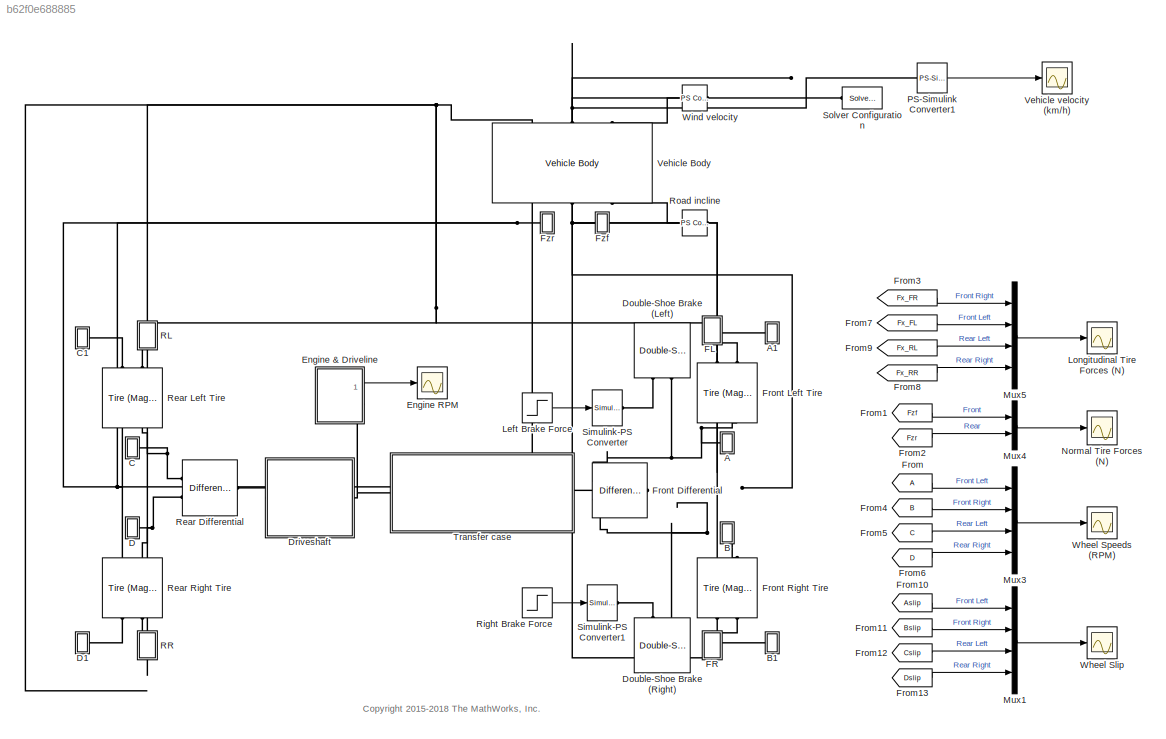
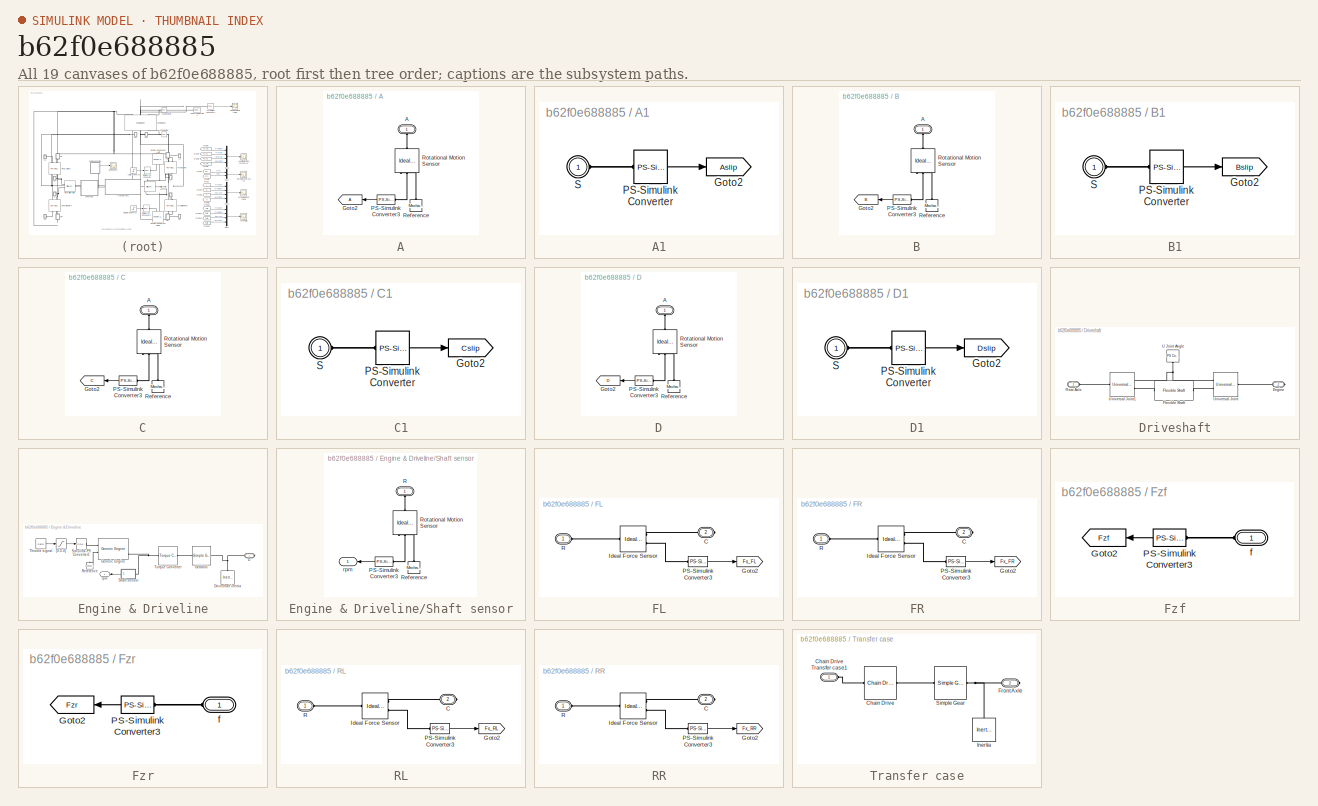
[diagram: thumbnail index - all 19 canvases of the model, root first then tree order]
MODEL slx_b62f0e688885
KIND model
CONFIG AbsTol = 1e-3
CONFIG EnableMultiTasking = on
CONFIG FixedStep = auto
CONFIG MaxStep = auto
CONFIG MinStep = auto
CONFIG RelTol = 1e-3
CONFIG SampleTimeConstraint = Unconstrained
CONFIG Solver = ode23t
CONFIG SolverName = ode23t
CONFIG StartTime = 0.0
CONFIG StopTime = 30
BLOCK [SubSystem] A
  Ports = [0, 0, 0, 0, 0, 1]
  RequestExecContextInheritance = off
BLOCK [PMIOPort] A/A
  NameLocation = right
  Side = Left
BLOCK [Goto] A/Goto2
  NameLocation = top
  TagVisibility = global
BLOCK [Reference] A/PS-Simulink Converter3  REF=nesl_utility/PS-Simulink
Converter
  NameLocation = top
  Ports = [0, 1, 0, 0, 0, 1]
  SourceBlock = nesl_utility/PS-Simulink\nConverter
  SourceProductBaseCode = SS
  SourceType = PS-Simulink\nConverter
BLOCK [Reference] A/Reference  REF=fl_lib/Mechanical/Rotational Elements/Mechanical
Rotational Reference
  NameLocation = right
  Ports = [0, 0, 0, 0, 0, 1]
  SourceBlock = fl_lib/Mechanical/Rotational Elements/Mechanical\nRotational Reference
  SourceProductBaseCode = SS
  SourceType = Mechanical\nRotational Reference
BLOCK [Reference] A/Rotational Motion Sensor  REF=fl_lib/Mechanical/Mechanical Sensors/Ideal Rotational
Motion Sensor
  NameLocation = left
  Ports = [0, 0, 0, 0, 0, 1, 3]
  SourceBlock = fl_lib/Mechanical/Mechanical Sensors/Ideal Rotational\nMotion Sensor
  SourceProductBaseCode = SS
  SourceType = Ideal Rotational\nMotion Sensor
BLOCK [SubSystem] A1
  NameLocation = top
  Ports = [0, 0, 0, 0, 0, 1]
  RequestExecContextInheritance = off
BLOCK [Goto] A1/Goto2
  GotoTag = Aslip
  NameLocation = top
  TagVisibility = global
BLOCK [Reference] A1/PS-Simulink Converter  REF=nesl_utility/PS-Simulink
Converter
  Ports = [0, 1, 0, 0, 0, 1]
  SourceBlock = nesl_utility/PS-Simulink\nConverter
  SourceProductBaseCode = SS
  SourceType = PS-Simulink\nConverter
BLOCK [PMIOPort] A1/S
  Side = Left
BLOCK [SubSystem] B
  NameLocation = top
  Ports = [0, 0, 0, 0, 0, 1]
  RequestExecContextInheritance = off
BLOCK [PMIOPort] B/A
  NameLocation = right
  Side = Left
BLOCK [Goto] B/Goto2
  GotoTag = B
  NameLocation = top
  TagVisibility = global
BLOCK [Reference] B/PS-Simulink Converter3  REF=nesl_utility/PS-Simulink
Converter
  NameLocation = top
  Ports = [0, 1, 0, 0, 0, 1]
  SourceBlock = nesl_utility/PS-Simulink\nConverter
  SourceProductBaseCode = SS
  SourceType = PS-Simulink\nConverter
BLOCK [Reference] B/Reference  REF=fl_lib/Mechanical/Rotational Elements/Mechanical
Rotational Reference
  NameLocation = right
  Ports = [0, 0, 0, 0, 0, 1]
  SourceBlock = fl_lib/Mechanical/Rotational Elements/Mechanical\nRotational Reference
  SourceProductBaseCode = SS
  SourceType = Mechanical\nRotational Reference
BLOCK [Reference] B/Rotational Motion Sensor  REF=fl_lib/Mechanical/Mechanical Sensors/Ideal Rotational
Motion Sensor
  NameLocation = left
  Ports = [0, 0, 0, 0, 0, 1, 3]
  SourceBlock = fl_lib/Mechanical/Mechanical Sensors/Ideal Rotational\nMotion Sensor
  SourceProductBaseCode = SS
  SourceType = Ideal Rotational\nMotion Sensor
BLOCK [SubSystem] B1
  NameLocation = top
  Ports = [0, 0, 0, 0, 0, 1]
  RequestExecContextInheritance = off
BLOCK [Goto] B1/Goto2
  GotoTag = Bslip
  NameLocation = top
  TagVisibility = global
BLOCK [Reference] B1/PS-Simulink Converter  REF=nesl_utility/PS-Simulink
Converter
  Ports = [0, 1, 0, 0, 0, 1]
  SourceBlock = nesl_utility/PS-Simulink\nConverter
  SourceProductBaseCode = SS
  SourceType = PS-Simulink\nConverter
BLOCK [PMIOPort] B1/S
  Side = Left
BLOCK [SubSystem] C
  Ports = [0, 0, 0, 0, 0, 1]
  RequestExecContextInheritance = off
BLOCK [PMIOPort] C/A
  NameLocation = right
  Side = Left
BLOCK [Goto] C/Goto2
  GotoTag = C
  NameLocation = top
  TagVisibility = global
BLOCK [Reference] C/PS-Simulink Converter3  REF=nesl_utility/PS-Simulink
Converter
  NameLocation = top
  Ports = [0, 1, 0, 0, 0, 1]
  SourceBlock = nesl_utility/PS-Simulink\nConverter
  SourceProductBaseCode = SS
  SourceType = PS-Simulink\nConverter
BLOCK [Reference] C/Reference  REF=fl_lib/Mechanical/Rotational Elements/Mechanical
Rotational Reference
  NameLocation = right
  Ports = [0, 0, 0, 0, 0, 1]
  SourceBlock = fl_lib/Mechanical/Rotational Elements/Mechanical\nRotational Reference
  SourceProductBaseCode = SS
  SourceType = Mechanical\nRotational Reference
BLOCK [Reference] C/Rotational Motion Sensor  REF=fl_lib/Mechanical/Mechanical Sensors/Ideal Rotational
Motion Sensor
  NameLocation = left
  Ports = [0, 0, 0, 0, 0, 1, 3]
  SourceBlock = fl_lib/Mechanical/Mechanical Sensors/Ideal Rotational\nMotion Sensor
  SourceProductBaseCode = SS
  SourceType = Ideal Rotational\nMotion Sensor
BLOCK [SubSystem] C1
  NameLocation = top
  Ports = [0, 0, 0, 0, 0, 1]
  RequestExecContextInheritance = off
BLOCK [Goto] C1/Goto2
  GotoTag = Cslip
  NameLocation = top
  TagVisibility = global
BLOCK [Reference] C1/PS-Simulink Converter  REF=nesl_utility/PS-Simulink
Converter
  Ports = [0, 1, 0, 0, 0, 1]
  SourceBlock = nesl_utility/PS-Simulink\nConverter
  SourceProductBaseCode = SS
  SourceType = PS-Simulink\nConverter
BLOCK [PMIOPort] C1/S
  Side = Left
BLOCK [SubSystem] D
  NameLocation = top
  Ports = [0, 0, 0, 0, 0, 1]
  RequestExecContextInheritance = off
BLOCK [PMIOPort] D/A
  NameLocation = right
  Side = Left
BLOCK [Goto] D/Goto2
  GotoTag = D
  NameLocation = top
  TagVisibility = global
BLOCK [Reference] D/PS-Simulink Converter3  REF=nesl_utility/PS-Simulink
Converter
  NameLocation = top
  Ports = [0, 1, 0, 0, 0, 1]
  SourceBlock = nesl_utility/PS-Simulink\nConverter
  SourceProductBaseCode = SS
  SourceType = PS-Simulink\nConverter
BLOCK [Reference] D/Reference  REF=fl_lib/Mechanical/Rotational Elements/Mechanical
Rotational Reference
  NameLocation = right
  Ports = [0, 0, 0, 0, 0, 1]
  SourceBlock = fl_lib/Mechanical/Rotational Elements/Mechanical\nRotational Reference
  SourceProductBaseCode = SS
  SourceType = Mechanical\nRotational Reference
BLOCK [Reference] D/Rotational Motion Sensor  REF=fl_lib/Mechanical/Mechanical Sensors/Ideal Rotational
Motion Sensor
  NameLocation = left
  Ports = [0, 0, 0, 0, 0, 1, 3]
  SourceBlock = fl_lib/Mechanical/Mechanical Sensors/Ideal Rotational\nMotion Sensor
  SourceProductBaseCode = SS
  SourceType = Ideal Rotational\nMotion Sensor
BLOCK [SubSystem] D1
  NameLocation = top
  Ports = [0, 0, 0, 0, 0, 1]
  RequestExecContextInheritance = off
BLOCK [Goto] D1/Goto2
  GotoTag = Dslip
  NameLocation = top
  TagVisibility = global
BLOCK [Reference] D1/PS-Simulink Converter  REF=nesl_utility/PS-Simulink
Converter
  Ports = [0, 1, 0, 0, 0, 1]
  SourceBlock = nesl_utility/PS-Simulink\nConverter
  SourceProductBaseCode = SS
  SourceType = PS-Simulink\nConverter
BLOCK [PMIOPort] D1/S
  Side = Left
BLOCK [Reference] Double-Shoe Brake (Left)  REF=sdl_lib/Brakes & Detents/Rotational/Double-Shoe Brake
  NameLocation = left
  Ports = [0, 0, 0, 0, 0, 2]
  SourceBlock = sdl_lib/Brakes & Detents/Rotational/Double-Shoe Brake
  SourceProductBaseCode = LD
  SourceType = Double-Shoe Brake
BLOCK [Reference] Double-Shoe Brake (Right)  REF=sdl_lib/Brakes & Detents/Rotational/Double-Shoe Brake
  NameLocation = left
  Ports = [0, 0, 0, 0, 0, 2]
  SourceBlock = sdl_lib/Brakes & Detents/Rotational/Double-Shoe Brake
  SourceProductBaseCode = LD
  SourceType = Double-Shoe Brake
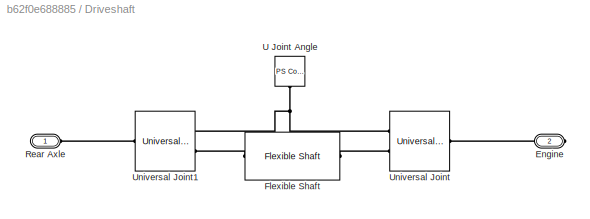
BLOCK [SubSystem] Driveshaft
  Ports = [0, 0, 0, 0, 0, 1, 1]
  RequestExecContextInheritance = off
BLOCK [PMIOPort] Driveshaft/Engine
  Port = 2
  Side = Right
BLOCK [Reference] Driveshaft/Flexible Shaft  REF=sdl_lib/Couplings & Drives/Flexible Shaft
  Ports = [0, 0, 0, 0, 0, 1, 1]
  SourceBlock = sdl_lib/Couplings & Drives/Flexible Shaft
  SourceProductBaseCode = LD
  SourceType = Flexible Shaft
BLOCK [PMIOPort] Driveshaft/Rear Axle
  Side = Left
BLOCK [Reference] Driveshaft/U Joint Angle  REF=fl_lib/Physical Signals/Sources/PS Constant
  NameLocation = left
  Ports = [0, 0, 0, 0, 0, 0, 1]
  SourceBlock = fl_lib/Physical Signals/Sources/PS Constant
  SourceProductBaseCode = SS
  SourceType = PS Constant
BLOCK [Reference] Driveshaft/Universal Joint  REF=sdl_lib/Couplings & Drives/Universal Joint
  Ports = [0, 0, 0, 0, 0, 2, 1]
  SourceBlock = sdl_lib/Couplings & Drives/Universal Joint
  SourceProductBaseCode = LD
  SourceType = Universal Joint
BLOCK [Reference] Driveshaft/Universal Joint1  REF=sdl_lib/Couplings & Drives/Universal Joint
  Ports = [0, 0, 0, 0, 0, 2, 1]
  SourceBlock = sdl_lib/Couplings & Drives/Universal Joint
  SourceProductBaseCode = LD
  SourceType = Universal Joint
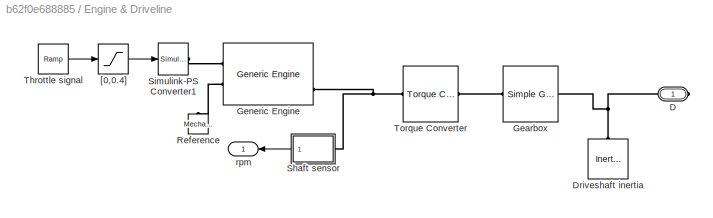
BLOCK [SubSystem] Engine & Driveline
  Ports = [0, 1, 0, 0, 0, 0, 1]
  RequestExecContextInheritance = off
BLOCK [PMIOPort] Engine & Driveline/D
  Side = Right
BLOCK [Reference] Engine & Driveline/Driveshaft inertia  REF=fl_lib/Mechanical/Rotational Elements/Inertia
  NameLocation = right
  Ports = [0, 0, 0, 0, 0, 1]
  SourceBlock = fl_lib/Mechanical/Rotational Elements/Inertia
  SourceProductBaseCode = SS
  SourceType = Inertia
BLOCK [Reference] Engine & Driveline/Gearbox  REF=sdl_lib/Gears/Simple Gear
  Ports = [0, 0, 0, 0, 0, 1, 1]
  SourceBlock = sdl_lib/Gears/Simple Gear
  SourceProductBaseCode = LD
  SourceType = Simple Gear
BLOCK [Reference] Engine & Driveline/Generic Engine  REF=sdl_lib/Engines/Generic Engine
  Ports = [0, 0, 0, 0, 0, 2, 3]
  SourceBlock = sdl_lib/Engines/Generic Engine
  SourceProductBaseCode = LD
  SourceType = Generic Engine
BLOCK [Reference] Engine & Driveline/Reference  REF=fl_lib/Mechanical/Rotational Elements/Mechanical
Rotational Reference
  NameLocation = right
  Ports = [0, 0, 0, 0, 0, 1]
  SourceBlock = fl_lib/Mechanical/Rotational Elements/Mechanical\nRotational Reference
  SourceProductBaseCode = SS
  SourceType = Mechanical\nRotational Reference
BLOCK [SubSystem] Engine & Driveline/Shaft sensor
  Ports = [0, 1, 0, 0, 0, 1]
  RequestExecContextInheritance = off
BLOCK [Reference] Engine & Driveline/Shaft sensor/PS-Simulink Converter3  REF=nesl_utility/PS-Simulink
Converter
  NameLocation = top
  Ports = [0, 1, 0, 0, 0, 1]
  SourceBlock = nesl_utility/PS-Simulink\nConverter
  SourceProductBaseCode = SS
  SourceType = PS-Simulink\nConverter
BLOCK [PMIOPort] Engine & Driveline/Shaft sensor/R
  NameLocation = right
  Side = Left
BLOCK [Reference] Engine & Driveline/Shaft sensor/Reference  REF=fl_lib/Mechanical/Rotational Elements/Mechanical
Rotational Reference
  NameLocation = right
  Ports = [0, 0, 0, 0, 0, 1]
  SourceBlock = fl_lib/Mechanical/Rotational Elements/Mechanical\nRotational Reference
  SourceProductBaseCode = SS
  SourceType = Mechanical\nRotational Reference
BLOCK [Reference] Engine & Driveline/Shaft sensor/Rotational Motion Sensor  REF=fl_lib/Mechanical/Mechanical Sensors/Ideal Rotational
Motion Sensor
  NameLocation = left
  Ports = [0, 0, 0, 0, 0, 1, 3]
  SourceBlock = fl_lib/Mechanical/Mechanical Sensors/Ideal Rotational\nMotion Sensor
  SourceProductBaseCode = SS
  SourceType = Ideal Rotational\nMotion Sensor
BLOCK [Outport] Engine & Driveline/Shaft sensor/rpm
  VectorParamsAs1DForOutWhenUnconnected = off
BLOCK [Reference] Engine & Driveline/Simulink-PS Converter1  REF=nesl_utility/Simulink-PS
Converter
  Ports = [1, 0, 0, 0, 0, 0, 1]
  SourceBlock = nesl_utility/Simulink-PS\nConverter
  SourceProductBaseCode = SS
  SourceType = Simulink-PS\nConverter
BLOCK [Reference] Engine & Driveline/Throttle signal  REF=simulink/Sources/Ramp
  Ports = [0, 1]
  SourceBlock = simulink/Sources/Ramp
  SourceProductBaseCode = SL
  SourceType = Ramp
BLOCK [Reference] Engine & Driveline/Torque Converter  REF=sdl_lib/Couplings & Drives/Torque Converter
  Ports = [0, 0, 0, 0, 0, 1, 1]
  SourceBlock = sdl_lib/Couplings & Drives/Torque Converter
  SourceProductBaseCode = LD
  SourceType = Torque Converter
BLOCK [Saturate] Engine & Driveline/[0,0.4]
  LowerLimit = 0
  UpperLimit = 0.4
BLOCK [Outport] Engine & Driveline/rpm
  VectorParamsAs1DForOutWhenUnconnected = off
BLOCK [Scope] Engine RPM
  Floating = off
  NameLocation = top
  NumInputPorts = 1
  Ports = [1]
  ScopeSpecificationString = Simulink.scopes.TimeScopeBlockCfg('CurrentConfiguration', extmgr.ConfigurationSet(extmgr.Configuration('Core','General UI',true),extmgr.Configuration('Core','Source UI',true),extmgr.Configuration('Sources','WiredSimulink',true,'DataLoggingVariableName','ScopeData3','DataLoggingSaveFormat','StructureWithTime','DataLoggingDecimation','1','DataLoggingDecimateData',true),extmgr.Configuration('Visuals'...<+1649ch>
BLOCK [SubSystem] FL
  NameLocation = right
  Ports = [0, 0, 0, 0, 0, 1, 1]
  RequestExecContextInheritance = off
BLOCK [PMIOPort] FL/C
  Port = 2
  Side = Right
BLOCK [Goto] FL/Goto2
  GotoTag = Fx_FL
  TagVisibility = global
BLOCK [Reference] FL/Ideal Force Sensor  REF=fl_lib/Mechanical/Mechanical Sensors/Ideal Force Sensor
  Ports = [0, 0, 0, 0, 0, 1, 2]
  SourceBlock = fl_lib/Mechanical/Mechanical Sensors/Ideal Force Sensor
  SourceProductBaseCode = SS
  SourceType = Ideal Force Sensor
BLOCK [Reference] FL/PS-Simulink Converter3  REF=nesl_utility/PS-Simulink
Converter
  Ports = [0, 1, 0, 0, 0, 1]
  SourceBlock = nesl_utility/PS-Simulink\nConverter
  SourceProductBaseCode = SS
  SourceType = PS-Simulink\nConverter
BLOCK [PMIOPort] FL/R
  Side = Left
BLOCK [SubSystem] FR
  NameLocation = right
  Ports = [0, 0, 0, 0, 0, 1, 1]
  RequestExecContextInheritance = off
BLOCK [PMIOPort] FR/C
  Port = 2
  Side = Right
BLOCK [Goto] FR/Goto2
  GotoTag = Fx_FR
  TagVisibility = global
BLOCK [Reference] FR/Ideal Force Sensor  REF=fl_lib/Mechanical/Mechanical Sensors/Ideal Force Sensor
  Ports = [0, 0, 0, 0, 0, 1, 2]
  SourceBlock = fl_lib/Mechanical/Mechanical Sensors/Ideal Force Sensor
  SourceProductBaseCode = SS
  SourceType = Ideal Force Sensor
BLOCK [Reference] FR/PS-Simulink Converter3  REF=nesl_utility/PS-Simulink
Converter
  Ports = [0, 1, 0, 0, 0, 1]
  SourceBlock = nesl_utility/PS-Simulink\nConverter
  SourceProductBaseCode = SS
  SourceType = PS-Simulink\nConverter
BLOCK [PMIOPort] FR/R
  Side = Left
BLOCK [From] From
  CloseFcn = tagdialog Close
  TagVisibility = global
BLOCK [From] From1
  CloseFcn = tagdialog Close
  GotoTag = Fzf
  TagVisibility = global
BLOCK [From] From10
  CloseFcn = tagdialog Close
  GotoTag = Aslip
  TagVisibility = global
BLOCK [From] From11
  CloseFcn = tagdialog Close
  GotoTag = Bslip
  TagVisibility = global
BLOCK [From] From12
  CloseFcn = tagdialog Close
  GotoTag = Cslip
  TagVisibility = global
BLOCK [From] From13
  CloseFcn = tagdialog Close
  GotoTag = Dslip
  TagVisibility = global
BLOCK [From] From2
  CloseFcn = tagdialog Close
  GotoTag = Fzr
  TagVisibility = global
BLOCK [From] From3
  CloseFcn = tagdialog Close
  GotoTag = Fx_FR
  TagVisibility = global
BLOCK [From] From4
  CloseFcn = tagdialog Close
  GotoTag = B
  TagVisibility = global
BLOCK [From] From5
  CloseFcn = tagdialog Close
  GotoTag = C
  TagVisibility = global
BLOCK [From] From6
  CloseFcn = tagdialog Close
  GotoTag = D
  TagVisibility = global
BLOCK [From] From7
  CloseFcn = tagdialog Close
  GotoTag = Fx_FL
  TagVisibility = global
BLOCK [From] From8
  CloseFcn = tagdialog Close
  GotoTag = Fx_RR
  TagVisibility = global
BLOCK [From] From9
  CloseFcn = tagdialog Close
  GotoTag = Fx_RL
  TagVisibility = global
BLOCK [Reference] Front Differential  REF=sdl_lib/Gears/Differential
  NameLocation = top
  Ports = [0, 0, 0, 0, 0, 1, 2]
  SourceBlock = sdl_lib/Gears/Differential
  SourceProductBaseCode = LD
  SourceType = Differential
BLOCK [Reference] Front Left Tire  REF=sdl_lib/Tires & Vehicles/Tire (Magic Formula)
  NameLocation = right
  Ports = [0, 0, 0, 0, 0, 2, 2]
  SourceBlock = sdl_lib/Tires & Vehicles/Tire (Magic Formula)
  SourceProductBaseCode = LD
  SourceType = Tire (Magic Formula)
BLOCK [Reference] Front Right Tire  REF=sdl_lib/Tires & Vehicles/Tire (Magic Formula)
  NameLocation = right
  Ports = [0, 0, 0, 0, 0, 2, 2]
  SourceBlock = sdl_lib/Tires & Vehicles/Tire (Magic Formula)
  SourceProductBaseCode = LD
  SourceType = Tire (Magic Formula)
BLOCK [SubSystem] Fzf
  Ports = [0, 0, 0, 0, 0, 1]
  RequestExecContextInheritance = off
BLOCK [Goto] Fzf/Goto2
  GotoTag = Fzf
  NameLocation = top
  TagVisibility = global
BLOCK [Reference] Fzf/PS-Simulink Converter3  REF=nesl_utility/PS-Simulink
Converter
  NameLocation = top
  Ports = [0, 1, 0, 0, 0, 1]
  SourceBlock = nesl_utility/PS-Simulink\nConverter
  SourceProductBaseCode = SS
  SourceType = PS-Simulink\nConverter
BLOCK [PMIOPort] Fzf/f
  Side = Left
BLOCK [SubSystem] Fzr
  Ports = [0, 0, 0, 0, 0, 1]
  RequestExecContextInheritance = off
BLOCK [Goto] Fzr/Goto2
  GotoTag = Fzr
  NameLocation = top
  TagVisibility = global
BLOCK [Reference] Fzr/PS-Simulink Converter3  REF=nesl_utility/PS-Simulink
Converter
  NameLocation = top
  Ports = [0, 1, 0, 0, 0, 1]
  SourceBlock = nesl_utility/PS-Simulink\nConverter
  SourceProductBaseCode = SS
  SourceType = PS-Simulink\nConverter
BLOCK [PMIOPort] Fzr/f
  Side = Left
BLOCK [Step] Left Brake Force
  After = 1000
  AttributesFormatString = Brake on @ %<Time> s
  NameLocation = top
  SampleTime = 0
  Time = 10
BLOCK [Scope] Longitudinal Tire Forces (N)
  Floating = off
  NumInputPorts = 1
  Ports = [1]
  ScopeSpecificationString = Simulink.scopes.TimeScopeBlockCfg('CurrentConfiguration', extmgr.ConfigurationSet(extmgr.Configuration('Core','General UI',true),extmgr.Configuration('Core','Source UI',true),extmgr.Configuration('Sources','WiredSimulink',true,'DataLoggingVariableName','ScopeData4','DataLoggingSaveFormat','StructureWithTime','DataLoggingDecimation','1','DataLoggingDecimateData',true),extmgr.Configuration('Visuals'...<+1849ch>
BLOCK [Mux] Mux1
  DisplayOption = bar
  Ports = [4, 1]
BLOCK [Mux] Mux3
  DisplayOption = bar
  Ports = [4, 1]
BLOCK [Mux] Mux4
  DisplayOption = bar
  Inputs = 2
  Ports = [2, 1]
BLOCK [Mux] Mux5
  DisplayOption = bar
  Ports = [4, 1]
BLOCK [Scope] Normal Tire Forces (N)
  Floating = off
  NumInputPorts = 1
  Ports = [1]
  ScopeSpecificationString = C++SS(StrPVP('Location','[719, 77, 1274, 604]'),StrPVP('Open','off'),MxPVP('AxesTitles',54,'struct(''axes1'',''%<SignalLabel>'')'),MxPVP('ScopeGraphics',57,'struct(''FigureColor'',''[0.501960784313725 0.501960784313725 0.501960784313725]'',''AxesColor'',''[0 0 0]'',''AxesTickColor'',''[1 1 1]'',''LineColors'',''[1 1 0;1 0 1;0 1 1;1 0 0;0 1 0;0 0 1]'',''LineStyles'',''-|-|-|-|-|-'',''LineWidths'','...<+382ch>
BLOCK [Reference] PS-Simulink Converter1  REF=nesl_utility/PS-Simulink
Converter
  Ports = [0, 1, 0, 0, 0, 1]
  SourceBlock = nesl_utility/PS-Simulink\nConverter
  SourceProductBaseCode = SS
  SourceType = PS-Simulink\nConverter
BLOCK [SubSystem] RL
  NameLocation = left
  Ports = [0, 0, 0, 0, 0, 1, 1]
  RequestExecContextInheritance = off
BLOCK [PMIOPort] RL/C
  Port = 2
  Side = Right
BLOCK [Goto] RL/Goto2
  GotoTag = Fx_RL
  TagVisibility = global
BLOCK [Reference] RL/Ideal Force Sensor  REF=fl_lib/Mechanical/Mechanical Sensors/Ideal Force Sensor
  Ports = [0, 0, 0, 0, 0, 1, 2]
  SourceBlock = fl_lib/Mechanical/Mechanical Sensors/Ideal Force Sensor
  SourceProductBaseCode = SS
  SourceType = Ideal Force Sensor
BLOCK [Reference] RL/PS-Simulink Converter3  REF=nesl_utility/PS-Simulink
Converter
  Ports = [0, 1, 0, 0, 0, 1]
  SourceBlock = nesl_utility/PS-Simulink\nConverter
  SourceProductBaseCode = SS
  SourceType = PS-Simulink\nConverter
BLOCK [PMIOPort] RL/R
  Side = Left
BLOCK [SubSystem] RR
  NameLocation = right
  Ports = [0, 0, 0, 0, 0, 1, 1]
  RequestExecContextInheritance = off
BLOCK [PMIOPort] RR/C
  Port = 2
  Side = Right
BLOCK [Goto] RR/Goto2
  GotoTag = Fx_RR
  TagVisibility = global
BLOCK [Reference] RR/Ideal Force Sensor  REF=fl_lib/Mechanical/Mechanical Sensors/Ideal Force Sensor
  Ports = [0, 0, 0, 0, 0, 1, 2]
  SourceBlock = fl_lib/Mechanical/Mechanical Sensors/Ideal Force Sensor
  SourceProductBaseCode = SS
  SourceType = Ideal Force Sensor
BLOCK [Reference] RR/PS-Simulink Converter3  REF=nesl_utility/PS-Simulink
Converter
  Ports = [0, 1, 0, 0, 0, 1]
  SourceBlock = nesl_utility/PS-Simulink\nConverter
  SourceProductBaseCode = SS
  SourceType = PS-Simulink\nConverter
BLOCK [PMIOPort] RR/R
  Side = Left
BLOCK [Reference] Rear Differential  REF=sdl_lib/Gears/Differential
  Ports = [0, 0, 0, 0, 0, 1, 2]
  SourceBlock = sdl_lib/Gears/Differential
  SourceProductBaseCode = LD
  SourceType = Differential
BLOCK [Reference] Rear Left Tire  REF=sdl_lib/Tires & Vehicles/Tire (Magic Formula)
  NameLocation = left
  Ports = [0, 0, 0, 0, 0, 2, 2]
  SourceBlock = sdl_lib/Tires & Vehicles/Tire (Magic Formula)
  SourceProductBaseCode = LD
  SourceType = Tire (Magic Formula)
BLOCK [Reference] Rear Right Tire  REF=sdl_lib/Tires & Vehicles/Tire (Magic Formula)
  NameLocation = left
  Ports = [0, 0, 0, 0, 0, 2, 2]
  SourceBlock = sdl_lib/Tires & Vehicles/Tire (Magic Formula)
  SourceProductBaseCode = LD
  SourceType = Tire (Magic Formula)
BLOCK [Step] Right Brake Force
  After = 1000
  AttributesFormatString = Brake on @ %<Time> s
  NameLocation = top
  SampleTime = 0
  Time = 15
BLOCK [Reference] Road incline  REF=fl_lib/Physical Signals/Sources/PS Constant
  Ports = [0, 0, 0, 0, 0, 0, 1]
  SourceBlock = fl_lib/Physical Signals/Sources/PS Constant
  SourceProductBaseCode = SS
  SourceType = PS Constant
BLOCK [Reference] Simulink-PS Converter  REF=nesl_utility/Simulink-PS
Converter
  Ports = [1, 0, 0, 0, 0, 0, 1]
  SourceBlock = nesl_utility/Simulink-PS\nConverter
  SourceProductBaseCode = SS
  SourceType = Simulink-PS\nConverter
BLOCK [Reference] Simulink-PS Converter1  REF=nesl_utility/Simulink-PS
Converter
  Ports = [1, 0, 0, 0, 0, 0, 1]
  SourceBlock = nesl_utility/Simulink-PS\nConverter
  SourceProductBaseCode = SS
  SourceType = Simulink-PS\nConverter
BLOCK [Reference] Solver Configuration  REF=nesl_utility/Solver
Configuration
  Ports = [0, 0, 0, 0, 0, 0, 1]
  SourceBlock = nesl_utility/Solver\nConfiguration
  SourceProductBaseCode = SS
  SourceType = Solver\nConfiguration
BLOCK [SubSystem] Transfer case
  Ports = [0, 0, 0, 0, 0, 1, 1]
  RequestExecContextInheritance = off
BLOCK [Reference] Transfer case/Chain Drive   REF=sdl_lib/Couplings & Drives/Chain Drive
  Ports = [0, 0, 0, 0, 0, 1, 1]
  SourceBlock = sdl_lib/Couplings & Drives/Chain Drive
  SourceProductBaseCode = LD
  SourceType = Chain Drive
BLOCK [PMIOPort] Transfer case/Chain Drive Transfer case1
  Side = Left
BLOCK [PMIOPort] Transfer case/Front Axle
  Port = 2
  Side = Right
BLOCK [Reference] Transfer case/Inertia  REF=fl_lib/Mechanical/Rotational Elements/Inertia
  NameLocation = right
  Ports = [0, 0, 0, 0, 0, 1]
  SourceBlock = fl_lib/Mechanical/Rotational Elements/Inertia
  SourceProductBaseCode = SS
  SourceType = Inertia
BLOCK [Reference] Transfer case/Simple Gear  REF=sdl_lib/Gears/Simple Gear
  Ports = [0, 0, 0, 0, 0, 1, 1]
  SourceBlock = sdl_lib/Gears/Simple Gear
  SourceProductBaseCode = LD
  SourceType = Simple Gear
BLOCK [Reference] Vehicle Body  REF=sdl_lib/Tires & Vehicles/Vehicle Body
  NameLocation = left
  Ports = [0, 0, 0, 0, 0, 3, 3]
  SourceBlock = sdl_lib/Tires & Vehicles/Vehicle Body
  SourceProductBaseCode = LD
  SourceType = Vehicle Body
BLOCK [Scope] Vehicle velocity (km//h)
  Floating = off
  NumInputPorts = 1
  Ports = [1]
  ScopeSpecificationString = C++SS(StrPVP('Location','[785, 69, 1273, 519]'),StrPVP('Open','off'),MxPVP('AxesTitles',54,'struct(''axes1'',''%<SignalLabel>'')'),MxPVP('ScopeGraphics',57,'struct(''FigureColor'',''[0.501960784313725 0.501960784313725 0.501960784313725]'',''AxesColor'',''[0 0 0]'',''AxesTickColor'',''[1 1 1]'',''LineColors'',''[1 1 0;1 0 1;0 1 1;1 0 0;0 1 0;0 0 1]'',''LineStyles'',''-|-|-|-|-|-'',''LineWidths'','...<+351ch>
BLOCK [Scope] Wheel Slip
  Floating = off
  NumInputPorts = 1
  Ports = [1]
  ScopeSpecificationString = Simulink.scopes.TimeScopeBlockCfg('CurrentConfiguration', extmgr.ConfigurationSet(extmgr.Configuration('Core','General UI',true),extmgr.Configuration('Core','Source UI',true),extmgr.Configuration('Sources','WiredSimulink',true,'DataLoggingSaveFormat','StructureWithTime','DataLoggingDecimation','1','DataLoggingDecimateData',true),extmgr.Configuration('Visuals','Time Domain',true,'SerializedDisplays...<+1812ch>
BLOCK [Scope] Wheel Speeds (RPM)
  Floating = off
  NumInputPorts = 1
  Ports = [1]
  ScopeSpecificationString = Simulink.scopes.TimeScopeBlockCfg('CurrentConfiguration', extmgr.ConfigurationSet(extmgr.Configuration('Core','General UI',true),extmgr.Configuration('Core','Source UI',true),extmgr.Configuration('Sources','WiredSimulink',true,'DataLoggingVariableName','ScopeData1','DataLoggingSaveFormat','StructureWithTime','DataLoggingDecimation','1','DataLoggingDecimateData',true),extmgr.Configuration('Visuals'...<+1838ch>
BLOCK [Reference] Wind velocity  REF=fl_lib/Physical Signals/Sources/PS Constant
  Ports = [0, 0, 0, 0, 0, 0, 1]
  SourceBlock = fl_lib/Physical Signals/Sources/PS Constant
  SourceProductBaseCode = SS
  SourceType = PS Constant
ANNOTATION (root): <copyright redacted>
LINE A/PS-Simulink Converter3:1 -> A/Goto2:1
LINE A1/PS-Simulink Converter:1 -> A1/Goto2:1
LINE B/PS-Simulink Converter3:1 -> B/Goto2:1
LINE B1/PS-Simulink Converter:1 -> B1/Goto2:1
LINE C/PS-Simulink Converter3:1 -> C/Goto2:1
LINE C1/PS-Simulink Converter:1 -> C1/Goto2:1
LINE D/PS-Simulink Converter3:1 -> D/Goto2:1
LINE D1/PS-Simulink Converter:1 -> D1/Goto2:1
LINE Engine & Driveline/Shaft sensor/PS-Simulink Converter3:1 -> Engine & Driveline/Shaft sensor/rpm:1
LINE Engine & Driveline/Shaft sensor:1 -> Engine & Driveline/rpm:1
LINE Engine & Driveline/Throttle signal:1 -> Engine & Driveline/[0,0.4]:1
LINE Engine & Driveline/[0,0.4]:1 -> Engine & Driveline/Simulink-PS Converter1:1
LINE Engine & Driveline:1 -> Engine RPM:1
LINE FL/PS-Simulink Converter3:1 -> FL/Goto2:1
LINE FR/PS-Simulink Converter3:1 -> FR/Goto2:1
LINE From10:1 -> Mux1:1
LINE From11:1 -> Mux1:2
LINE From12:1 -> Mux1:3
LINE From13:1 -> Mux1:4
LINE From1:1 -> Mux4:1
LINE From2:1 -> Mux4:2
LINE From3:1 -> Mux5:1
LINE From4:1 -> Mux3:2
LINE From5:1 -> Mux3:3
LINE From6:1 -> Mux3:4
LINE From7:1 -> Mux5:2
LINE From8:1 -> Mux5:4
LINE From9:1 -> Mux5:3
LINE From:1 -> Mux3:1
LINE Fzf/PS-Simulink Converter3:1 -> Fzf/Goto2:1
LINE Fzr/PS-Simulink Converter3:1 -> Fzr/Goto2:1
LINE Left Brake Force:1 -> Simulink-PS Converter:1
LINE Mux1:1 -> Wheel Slip:1
LINE Mux3:1 -> Wheel Speeds (RPM):1
LINE Mux4:1 -> Normal Tire Forces (N):1
LINE Mux5:1 -> Longitudinal Tire Forces (N):1
LINE PS-Simulink Converter1:1 -> Vehicle velocity (km//h):1
LINE RL/PS-Simulink Converter3:1 -> RL/Goto2:1
LINE RR/PS-Simulink Converter3:1 -> RR/Goto2:1
LINE Right Brake Force:1 -> Simulink-PS Converter1:1
PLINE A/A:RConn1 -- A/Rotational Motion Sensor:LConn1
PLINE A/PS-Simulink Converter3:LConn1 -- A/Rotational Motion Sensor:RConn2
PLINE A/Reference:LConn1 -- A/Rotational Motion Sensor:RConn1
PLINE A1/PS-Simulink Converter:LConn1 -- A1/S:RConn1
PLINE A1:LConn1 -- Front Left Tire:RConn1
PNET net1: A:LConn1 -- Double-Shoe Brake (Left):LConn2 -- Front Differential:RConn1 -- Front Left Tire:LConn2
PLINE B/A:RConn1 -- B/Rotational Motion Sensor:LConn1
PLINE B/PS-Simulink Converter3:LConn1 -- B/Rotational Motion Sensor:RConn2
PLINE B/Reference:LConn1 -- B/Rotational Motion Sensor:RConn1
PLINE B1/PS-Simulink Converter:LConn1 -- B1/S:RConn1
PLINE B1:LConn1 -- Front Right Tire:RConn1
PNET net2: B:LConn1 -- Double-Shoe Brake (Right):LConn2 -- Front Differential:RConn2 -- Front Right Tire:LConn2
PLINE C/A:RConn1 -- C/Rotational Motion Sensor:LConn1
PLINE C/PS-Simulink Converter3:LConn1 -- C/Rotational Motion Sensor:RConn2
PLINE C/Reference:LConn1 -- C/Rotational Motion Sensor:RConn1
PLINE C1/PS-Simulink Converter:LConn1 -- C1/S:RConn1
PLINE C1:LConn1 -- Rear Left Tire:RConn1
PNET net3: C:LConn1 -- Rear Differential:RConn1 -- Rear Left Tire:LConn2
PLINE D/A:RConn1 -- D/Rotational Motion Sensor:LConn1
PLINE D/PS-Simulink Converter3:LConn1 -- D/Rotational Motion Sensor:RConn2
PLINE D/Reference:LConn1 -- D/Rotational Motion Sensor:RConn1
PLINE D1/PS-Simulink Converter:LConn1 -- D1/S:RConn1
PLINE D1:LConn1 -- Rear Right Tire:RConn1
PNET net4: D:LConn1 -- Rear Differential:RConn2 -- Rear Right Tire:LConn2
PLINE Double-Shoe Brake (Left):LConn1 -- Simulink-PS Converter:RConn1
PLINE Double-Shoe Brake (Right):LConn1 -- Simulink-PS Converter1:RConn1
PLINE Driveshaft/Engine:RConn1 -- Driveshaft/Universal Joint:RConn1
PLINE Driveshaft/Flexible Shaft:LConn1 -- Driveshaft/Universal Joint1:LConn2
PLINE Driveshaft/Flexible Shaft:RConn1 -- Driveshaft/Universal Joint:LConn2
PLINE Driveshaft/Rear Axle:RConn1 -- Driveshaft/Universal Joint1:RConn1
PNET net5: Driveshaft/U Joint Angle:RConn1 -- Driveshaft/Universal Joint1:LConn1 -- Driveshaft/Universal Joint:LConn1
PLINE Driveshaft:LConn1 -- Rear Differential:LConn1
PNET net6: Driveshaft:RConn1 -- Engine & Driveline:RConn1 -- Transfer case:LConn1
PNET net7: Engine & Driveline/D:RConn1 -- Engine & Driveline/Driveshaft inertia:LConn1 -- Engine & Driveline/Gearbox:RConn1
PLINE Engine & Driveline/Gearbox:LConn1 -- Engine & Driveline/Torque Converter:RConn1
PLINE Engine & Driveline/Generic Engine:LConn1 -- Engine & Driveline/Simulink-PS Converter1:RConn1
PLINE Engine & Driveline/Generic Engine:LConn2 -- Engine & Driveline/Reference:LConn1
PNET net8: Engine & Driveline/Generic Engine:RConn3 -- Engine & Driveline/Shaft sensor:LConn1 -- Engine & Driveline/Torque Converter:LConn1
PLINE Engine & Driveline/Shaft sensor/PS-Simulink Converter3:LConn1 -- Engine & Driveline/Shaft sensor/Rotational Motion Sensor:RConn2
PLINE Engine & Driveline/Shaft sensor/R:RConn1 -- Engine & Driveline/Shaft sensor/Rotational Motion Sensor:LConn1
PLINE Engine & Driveline/Shaft sensor/Reference:LConn1 -- Engine & Driveline/Shaft sensor/Rotational Motion Sensor:RConn1
PLINE FL/C:RConn1 -- FL/Ideal Force Sensor:RConn1
PLINE FL/Ideal Force Sensor:LConn1 -- FL/R:RConn1
PLINE FL/Ideal Force Sensor:RConn2 -- FL/PS-Simulink Converter3:LConn1
PLINE FL:LConn1 -- Front Left Tire:RConn2
PNET net9: FL:RConn1 -- FR:RConn1 -- RL:RConn1 -- RR:RConn1 -- Vehicle Body:LConn1
PLINE FR/C:RConn1 -- FR/Ideal Force Sensor:RConn1
PLINE FR/Ideal Force Sensor:LConn1 -- FR/R:RConn1
PLINE FR/Ideal Force Sensor:RConn2 -- FR/PS-Simulink Converter3:LConn1
PLINE FR:LConn1 -- Front Right Tire:RConn2
PLINE Front Differential:LConn1 -- Transfer case:RConn1
PNET net10: Front Left Tire:LConn1 -- Front Right Tire:LConn1 -- Fzf:LConn1 -- Vehicle Body:RConn2
PLINE Fzf/PS-Simulink Converter3:LConn1 -- Fzf/f:RConn1
PLINE Fzr/PS-Simulink Converter3:LConn1 -- Fzr/f:RConn1
PNET net11: Fzr:LConn1 -- Rear Left Tire:LConn1 -- Rear Right Tire:LConn1 -- Vehicle Body:RConn1
PNET net12: PS-Simulink Converter1:LConn1 -- Solver Configuration:RConn1 -- Vehicle Body:LConn2
PLINE RL/C:RConn1 -- RL/Ideal Force Sensor:RConn1
PLINE RL/Ideal Force Sensor:LConn1 -- RL/R:RConn1
PLINE RL/Ideal Force Sensor:RConn2 -- RL/PS-Simulink Converter3:LConn1
PLINE RL:LConn1 -- Rear Left Tire:RConn2
PLINE RR/C:RConn1 -- RR/Ideal Force Sensor:RConn1
PLINE RR/Ideal Force Sensor:LConn1 -- RR/R:RConn1
PLINE RR/Ideal Force Sensor:RConn2 -- RR/PS-Simulink Converter3:LConn1
PLINE RR:LConn1 -- Rear Right Tire:RConn2
PLINE Road incline:RConn1 -- Vehicle Body:RConn3
PLINE Transfer case/Chain Drive :LConn1 -- Transfer case/Chain Drive Transfer case1:RConn1
PLINE Transfer case/Chain Drive :RConn1 -- Transfer case/Simple Gear:LConn1
PNET net13: Transfer case/Front Axle:RConn1 -- Transfer case/Inertia:LConn1 -- Transfer case/Simple Gear:RConn1
PLINE Vehicle Body:LConn3 -- Wind velocity:RConn1
note: PNET lines group multi-terminal physical nets as a canonical sorted terminal list (undirected conserving connections); 2-terminal nets keep the pairwise PLINE form
